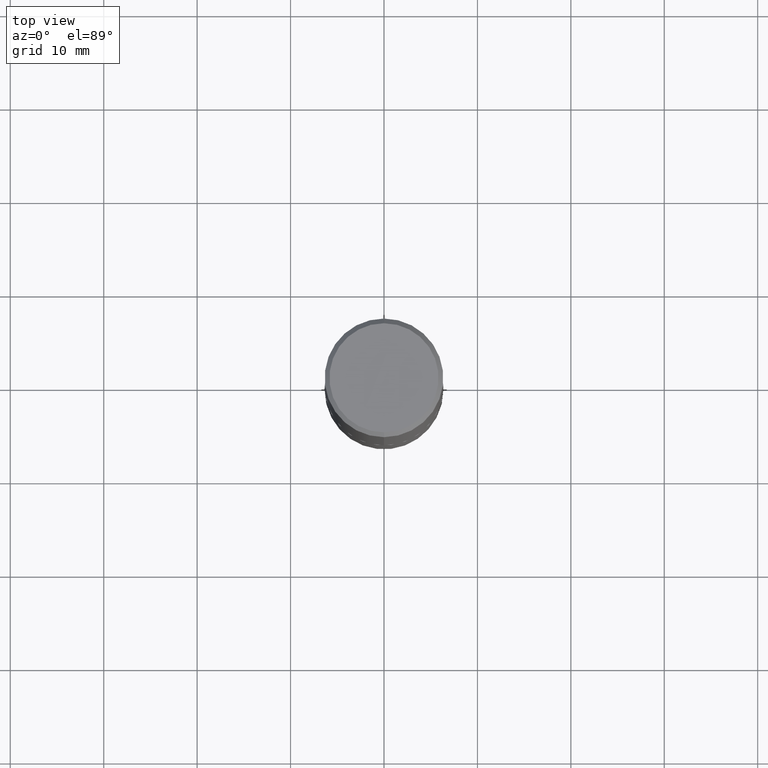
[diagram: clean part render]
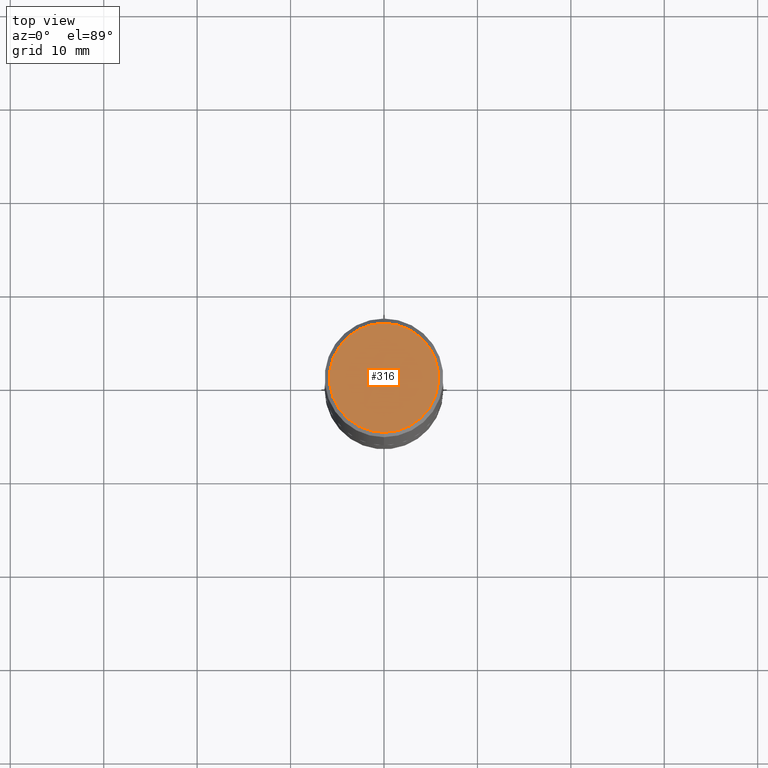
[diagram: same view with one face highlighted and labeled with its STEP entity id]
A machine part, top view. The second image highlights one B-rep face of the part: STEP entity #316.
In plain terms, the highlighted planar face has unit normal (0, -0, -1).
Its self-contained STEP definition (entity closure, byte-faithful):
#5 = AXIS2_PLACEMENT_3D ( 'NONE', #292, #318, #284 ) ;
#6 = CARTESIAN_POINT ( 'NONE',  ( -1.646519519465166968E-15, -0.2299999999999999822, 7.995334180013181207E-16 ) ) ;
#8 = EDGE_CURVE ( 'NONE', #373, #332, #209, .T. ) ;
#29 = DIRECTION ( 'NONE',  ( -2.444313243422440590E-29, 3.493136170489874041E-15, 1.000000000000000000 ) ) ;
#50 = FACE_OUTER_BOUND ( 'NONE', #215, .T. ) ;
#56 = DIRECTION ( 'NONE',  ( -6.982962677686265922E-15, -1.000000000000000000, 3.493136170489874041E-15 ) ) ;
#106 = AXIS2_PLACEMENT_3D ( 'NONE', #226, #195, #365 ) ;
#115 = AXIS2_PLACEMENT_3D ( 'NONE', #253, #29, #56 ) ;
#122 = CIRCLE ( 'NONE', #5, 0.2299999999999999822 ) ;
#155 = ORIENTED_EDGE ( 'NONE', *, *, #8, .T. ) ;
#192 = EDGE_CURVE ( 'NONE', #332, #373, #122, .T. ) ;
#195 = DIRECTION ( 'NONE',  ( 2.444313243422440310E-29, -3.493136170489874041E-15, -1.000000000000000000 ) ) ;
#209 = CIRCLE ( 'NONE', #115, 0.2299999999999999822 ) ;
#215 = EDGE_LOOP ( 'NONE', ( #282, #155 ) ) ;
#226 = CARTESIAN_POINT ( 'NONE',  ( 1.606081415867841067E-15, 0.2299999999999999822, -8.053652698183474938E-16 ) ) ;
#253 = CARTESIAN_POINT ( 'NONE',  ( 9.503248420027907092E-47, -1.358096834866801996E-32, -3.887901211352844228E-18 ) ) ;
#282 = ORIENTED_EDGE ( 'NONE', *, *, #192, .T. ) ;
#284 = DIRECTION ( 'NONE',  ( -6.982962677686265922E-15, -1.000000000000000000, 3.493136170489874041E-15 ) ) ;
#292 = CARTESIAN_POINT ( 'NONE',  ( 9.503248420027907092E-47, -1.358096834866801996E-32, -3.887901211352844228E-18 ) ) ;
#307 = PLANE ( 'NONE',  #106 ) ;
#316 = ADVANCED_FACE ( 'NONE', ( #50 ), #307, .F. ) ;
#318 = DIRECTION ( 'NONE',  ( -2.444313243422440590E-29, 3.493136170489874041E-15, 1.000000000000000000 ) ) ;
#332 = VERTEX_POINT ( 'NONE', #354 ) ;
#354 = CARTESIAN_POINT ( 'NONE',  ( 1.675911042644703774E-15, 0.2299999999999999822, -8.073092204240238200E-16 ) ) ;
#365 = DIRECTION ( 'NONE',  ( 6.982962677686265922E-15, 1.000000000000000000, -3.493136170489874041E-15 ) ) ;
#373 = VERTEX_POINT ( 'NONE', #6 ) ;